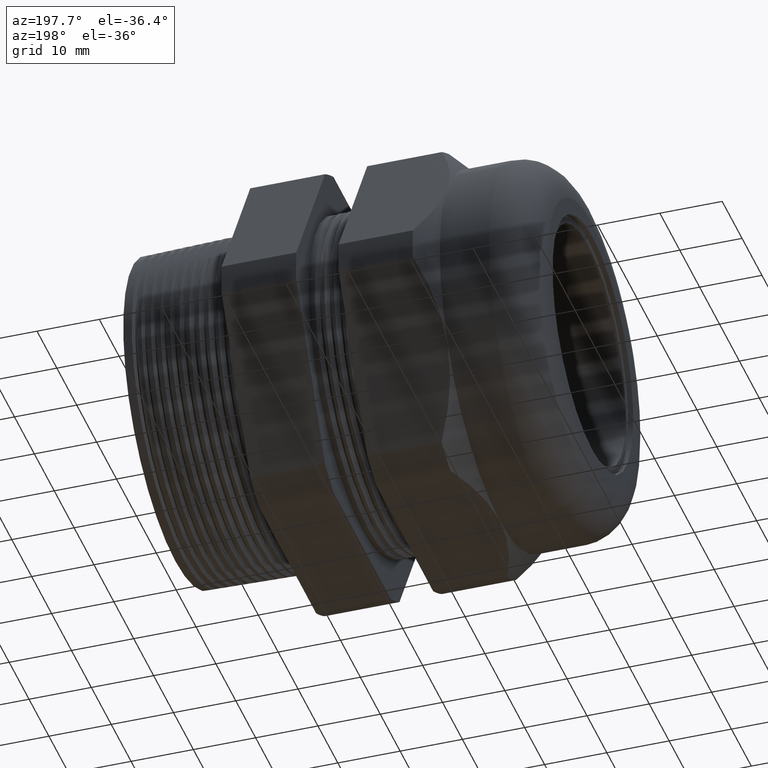
[diagram: clean part render]
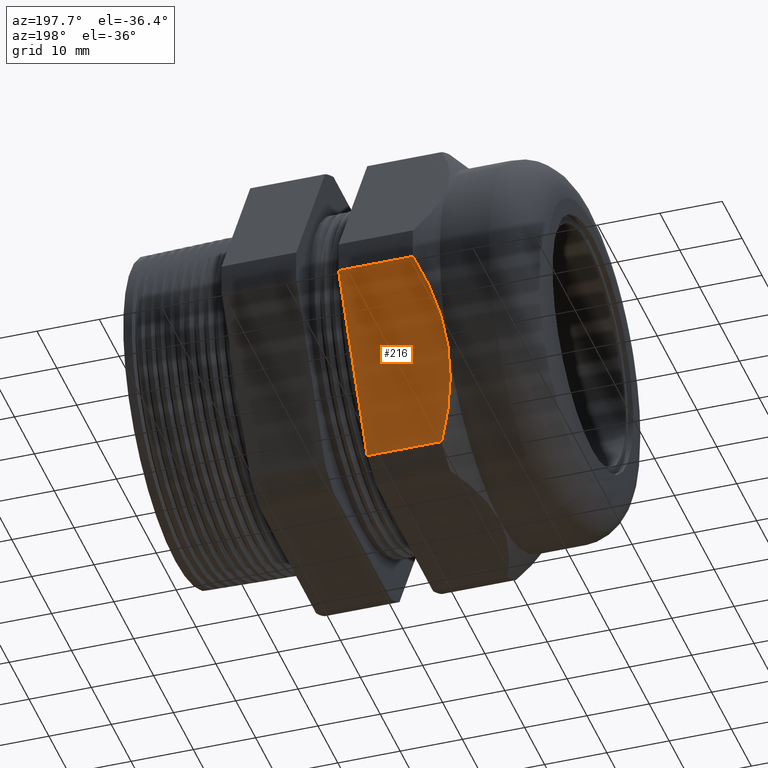
[diagram: same view with one face highlighted and labeled with its STEP entity id]
A machine part, auxiliary view. The second image highlights one B-rep face of the part: STEP entity #216.
In plain terms, the highlighted planar face has unit normal (0, 0.866, -0.5).
Its self-contained STEP definition (entity closure, byte-faithful):
#214 = EDGE_LOOP ( 'NONE', ( #215, #227, #4079, #4082, #4084 ) ) ;
#215 = ORIENTED_EDGE ( 'NONE', *, *, #220, .T. ) ;
#216 = ADVANCED_FACE ( 'NONE', ( #969 ), #968, .T. ) ;
#218 = VERTEX_POINT ( 'NONE', #958 ) ;
#220 = EDGE_CURVE ( 'NONE', #221, #218, #951, .T. ) ;
#221 = VERTEX_POINT ( 'NONE', #1009 ) ;
#227 = ORIENTED_EDGE ( 'NONE', *, *, #4089, .T. ) ;
#951 = LINE ( 'NONE', #957, #1011 ) ;
#957 = CARTESIAN_POINT ( 'NONE',  ( 0.4000000000000000800, 0.7376671049631152700, -1.082323095131641400 ) ) ;
#958 = CARTESIAN_POINT ( 'NONE',  ( -1.519649999999999900, 0.7376671049631152700, -1.082323095131641400 ) ) ;
#964 = DIRECTION ( 'NONE',  ( 0.0000000000000000000, 0.4999999999999998300, 0.8660254037844386000 ) ) ;
#965 = DIRECTION ( 'NONE',  ( 0.0000000000000000000, 0.8660254037844387100, -0.4999999999999998900 ) ) ;
#966 = CARTESIAN_POINT ( 'NONE',  ( 0.4000000000000000800, 1.306152847968161000, -0.09767690486835838000 ) ) ;
#967 = AXIS2_PLACEMENT_3D ( 'NONE', #966, #965, #964 ) ;
#968 = PLANE ( 'NONE',  #967 ) ;
#969 = FACE_OUTER_BOUND ( 'NONE', #214, .T. ) ;
#1009 = CARTESIAN_POINT ( 'NONE',  ( -1.049449999999999500, 0.7376671049631152700, -1.082323095131641400 ) ) ;
#1010 = DIRECTION ( 'NONE',  ( -1.000000000000000000, 0.0000000000000000000, 0.0000000000000000000 ) ) ;
#1011 = VECTOR ( 'NONE', #1010, 39.37007874015748100 ) ;
#2316 = CARTESIAN_POINT ( 'NONE',  ( -1.649449999999999600, 1.021909976465638300, -0.5900000000000000800 ) ) ;
#2967 = VERTEX_POINT ( 'NONE', #2316 ) ;
#3533 = CARTESIAN_POINT ( 'NONE',  ( -1.643274933607495000, 0.9602803817511425000, -0.6967455892953851000 ) ) ;
#3534 = CARTESIAN_POINT ( 'NONE',  ( -1.634227948313096100, 0.9238259417959018300, -0.7598865314593309400 ) ) ;
#3535 = CARTESIAN_POINT ( 'NONE',  ( -1.625348669446345900, 0.8998778565486580400, -0.8013658318515467500 ) ) ;
#3536 = CARTESIAN_POINT ( 'NONE',  ( -1.591345505985919600, 0.8289513709329584500, -0.9242141085402422200 ) ) ;
#3537 = CARTESIAN_POINT ( 'NONE',  ( -1.558901475994756400, 0.7828851107711131100, -1.004003211655244600 ) ) ;
#3538 = CARTESIAN_POINT ( 'NONE',  ( -1.519649999999999900, 0.7376671049631152700, -1.082323095131641400 ) ) ;
#3540 = B_SPLINE_CURVE_WITH_KNOTS ( 'NONE', 3,
 ( #3538, #3537, #3536, #3535, #3534, #3533, #3599, #3598, #3597, #3596 ),
 .UNSPECIFIED., .F., .F.,
 ( 4, 2, 2, 2, 4 ),
 ( 2.483246384199843800E-007, 0.007410219950490938600, 0.01111520576341720200, 0.01296769866988033100, 0.01482019157634346400 ),
 .UNSPECIFIED. ) ;
#3545 = CARTESIAN_POINT ( 'NONE',  ( -1.519649999999999700, 1.306152847968161000, -0.09767690486835838000 ) ) ;
#3546 = CARTESIAN_POINT ( 'NONE',  ( -1.539300024126190900, 1.283515867254771300, -0.1368853055939061600 ) ) ;
#3547 = CARTESIAN_POINT ( 'NONE',  ( -1.557343162014755300, 1.260539715777235600, -0.1766811673153969600 ) ) ;
#3548 = CARTESIAN_POINT ( 'NONE',  ( -1.589329828712719100, 1.213885783483384900, -0.2574881484212248100 ) ) ;
#3549 = CARTESIAN_POINT ( 'NONE',  ( -1.603147026242972800, 1.190386845346794500, -0.2981895031977165300 ) ) ;
#3550 = CARTESIAN_POINT ( 'NONE',  ( -1.637033206165112900, 1.119292164269853200, -0.4213291029708848800 ) ) ;
#3551 = CARTESIAN_POINT ( 'NONE',  ( -1.649449999999999600, 1.071091697083841100, -0.5048147610856147400 ) ) ;
#3552 = CARTESIAN_POINT ( 'NONE',  ( -1.649449999999999600, 1.021909976465638300, -0.5900000000000000800 ) ) ;
#3556 = B_SPLINE_CURVE_WITH_KNOTS ( 'NONE', 3,
 ( #3552, #3551, #3550, #3549, #3548, #3547, #3546, #3545 ),
 .UNSPECIFIED., .F., .F.,
 ( 4, 2, 2, 4 ),
 ( 0.01482019157634346400, 0.02222508228781089700, 0.02592752764354461900, 0.02962997299927833800 ),
 .UNSPECIFIED. ) ;
#3559 = DIRECTION ( 'NONE',  ( 0.0000000000000000000, 0.4999999999999998300, 0.8660254037844386000 ) ) ;
#3560 = VECTOR ( 'NONE', #3559, 39.37007874015748900 ) ;
#3561 = CARTESIAN_POINT ( 'NONE',  ( -1.049449999999999500, 1.288159976465638000, -0.1288414724847865300 ) ) ;
#3562 = LINE ( 'NONE', #3561, #3560 ) ;
#3596 = CARTESIAN_POINT ( 'NONE',  ( -1.649449999999999600, 1.021909976465638300, -0.5900000000000000800 ) ) ;
#3597 = CARTESIAN_POINT ( 'NONE',  ( -1.649449999999999000, 1.009606109720950100, -0.6113109223313564200 ) ) ;
#3598 = CARTESIAN_POINT ( 'NONE',  ( -1.648671362268123500, 0.9971897060428773800, -0.6328167643490639800 ) ) ;
#3599 = CARTESIAN_POINT ( 'NONE',  ( -1.645578772962689400, 0.9725205596792977400, -0.6755449792301364600 ) ) ;
#3609 = CARTESIAN_POINT ( 'NONE',  ( -1.049449999999999500, 1.306152847968161000, -0.09767690486835838000 ) ) ;
#3610 = CARTESIAN_POINT ( 'NONE',  ( -1.519649999999999700, 1.306152847968161000, -0.09767690486835838000 ) ) ;
#3645 = DIRECTION ( 'NONE',  ( -1.000000000000000000, 0.0000000000000000000, 0.0000000000000000000 ) ) ;
#3646 = VECTOR ( 'NONE', #3645, 39.37007874015748100 ) ;
#3647 = CARTESIAN_POINT ( 'NONE',  ( 0.4000000000000000800, 1.306152847968161000, -0.09767690486835838000 ) ) ;
#3648 = LINE ( 'NONE', #3647, #3646 ) ;
#4079 = ORIENTED_EDGE ( 'NONE', *, *, #4086, .T. ) ;
#4082 = ORIENTED_EDGE ( 'NONE', *, *, #4135, .F. ) ;
#4084 = ORIENTED_EDGE ( 'NONE', *, *, #4085, .F. ) ;
#4085 = EDGE_CURVE ( 'NONE', #221, #4125, #3562, .T. ) ;
#4086 = EDGE_CURVE ( 'NONE', #2967, #4124, #3556, .T. ) ;
#4089 = EDGE_CURVE ( 'NONE', #218, #2967, #3540, .T. ) ;
#4124 = VERTEX_POINT ( 'NONE', #3610 ) ;
#4125 = VERTEX_POINT ( 'NONE', #3609 ) ;
#4135 = EDGE_CURVE ( 'NONE', #4125, #4124, #3648, .T. ) ;